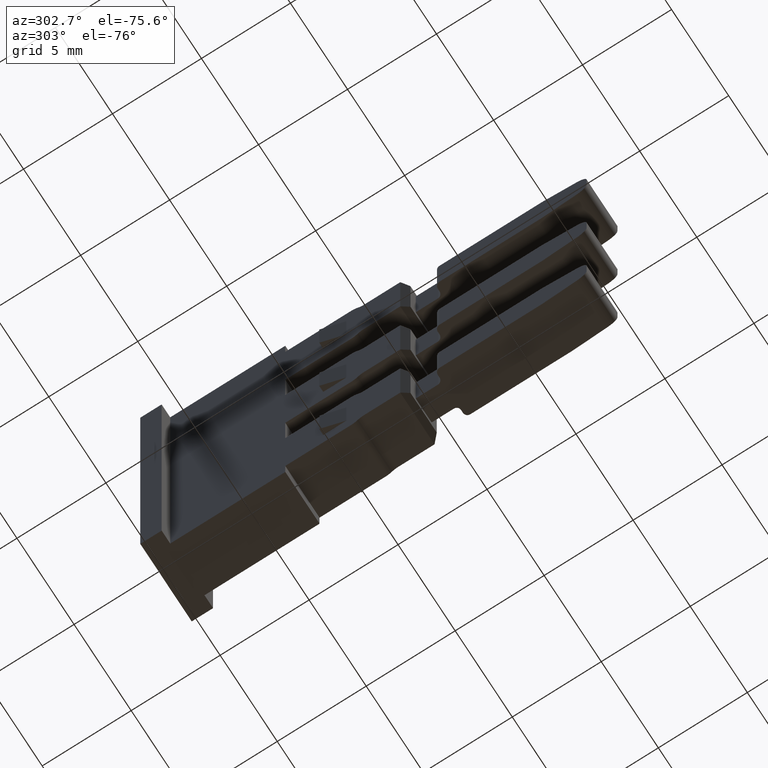
[diagram: clean part render]
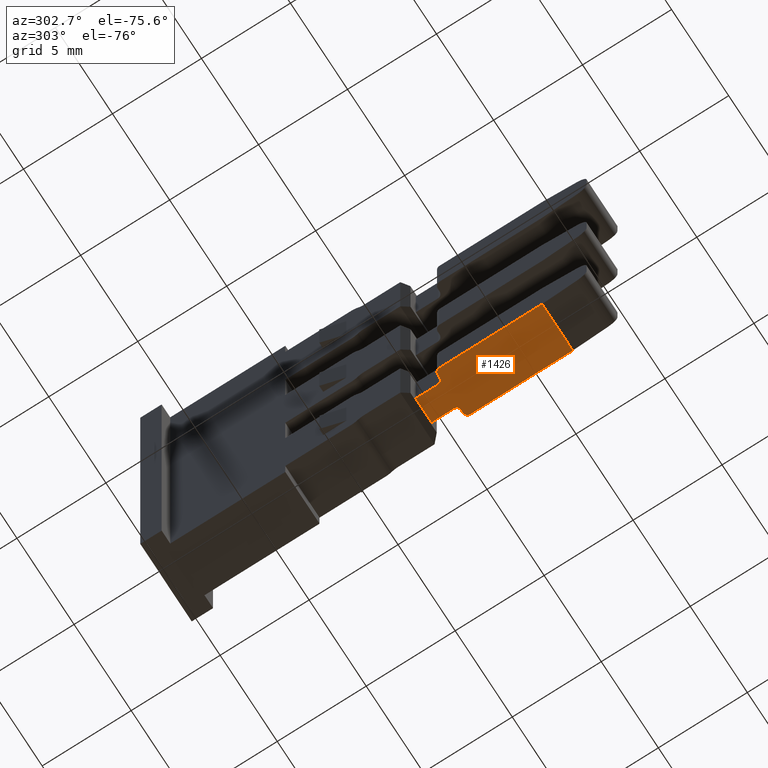
[diagram: same view with one face highlighted and labeled with its STEP entity id]
A machine part, auxiliary view. The second image highlights one B-rep face of the part: STEP entity #1426.
In plain terms, the highlighted planar face has unit normal (-0, 0, 1).
Its self-contained STEP definition (entity closure, byte-faithful):
#38 = LINE ( 'NONE', #68, #3055 ) ;
#57 = DIRECTION ( 'NONE',  ( -1.000000000000000000, -2.027333134354696000E-015, -1.149757754718231300E-014 ) ) ;
#68 = CARTESIAN_POINT ( 'NONE',  ( 100.4203046668918700, 238.3134866759714000, 151.3398226793859500 ) ) ;
#88 = DIRECTION ( 'NONE',  ( -7.193572994224770700E-015, 2.594839121907101700E-014, 1.000000000000000000 ) ) ;
#89 = PLANE ( 'NONE',  #3048 ) ;
#91 = CARTESIAN_POINT ( 'NONE',  ( 110.0552529172780100, 248.6101602476014400, 151.3398226793860000 ) ) ;
#93 = DIRECTION ( 'NONE',  ( 0.0000000000000000000, -1.000000000000000000, 2.594839121907101700E-014 ) ) ;
#95 = FACE_OUTER_BOUND ( 'NONE', #1897, .T. ) ;
#753 = CARTESIAN_POINT ( 'NONE',  ( 112.0980534371295500, 244.0815789080035900, 151.3398226793861200 ) ) ;
#754 = CARTESIAN_POINT ( 'NONE',  ( 109.4024523974270400, 238.3134866759714300, 151.3398226793860600 ) ) ;
#755 = CARTESIAN_POINT ( 'NONE',  ( 111.8480534371295500, 244.3315789080035100, 151.3398226793861200 ) ) ;
#758 = CARTESIAN_POINT ( 'NONE',  ( 111.4452529172783200, 245.8315789080019700, 151.3398226793864000 ) ) ;
#760 = CARTESIAN_POINT ( 'NONE',  ( 109.8052529172788500, 244.3315789080034500, 151.3398226793861200 ) ) ;
#763 = CARTESIAN_POINT ( 'NONE',  ( 110.0552529172788400, 245.8315789080019400, 151.3398226793860600 ) ) ;
#765 = CARTESIAN_POINT ( 'NONE',  ( 110.0552529172788600, 244.5815789080034500, 151.3398226793861200 ) ) ;
#767 = CARTESIAN_POINT ( 'NONE',  ( 111.6952529172784900, 244.3315789080035600, 151.3398226793871700 ) ) ;
#787 = CARTESIAN_POINT ( 'NONE',  ( 109.6524523974265600, 244.3315789080034500, 151.3398226793861200 ) ) ;
#789 = CARTESIAN_POINT ( 'NONE',  ( 111.4452529172784800, 244.5815789080035900, 151.3398226793871700 ) ) ;
#801 = CARTESIAN_POINT ( 'NONE',  ( 112.0980534371293500, 238.3134866759717700, 151.3398226793861200 ) ) ;
#819 = CARTESIAN_POINT ( 'NONE',  ( 109.4024523974265600, 244.0815789080034200, 151.3398226793861700 ) ) ;
#1077 = EDGE_CURVE ( 'NONE', #1620, #1583, #3821, .T. ) ;
#1085 = EDGE_CURVE ( 'NONE', #1613, #1620, #2654, .T. ) ;
#1099 = EDGE_CURVE ( 'NONE', #1583, #1625, #2690, .T. ) ;
#1100 = EDGE_CURVE ( 'NONE', #1596, #1634, #3851, .T. ) ;
#1106 = EDGE_CURVE ( 'NONE', #1615, #1636, #2657, .T. ) ;
#1107 = EDGE_CURVE ( 'NONE', #1634, #1605, #3929, .T. ) ;
#1110 = EDGE_CURVE ( 'NONE', #1618, #1636, #3905, .T. ) ;
#1126 = EDGE_CURVE ( 'NONE', #1625, #1596, #3959, .T. ) ;
#1149 = EDGE_CURVE ( 'NONE', #1631, #1615, #4019, .T. ) ;
#1152 = EDGE_CURVE ( 'NONE', #1613, #1603, #3999, .T. ) ;
#1172 = EDGE_CURVE ( 'NONE', #1605, #1631, #2737, .T. ) ;
#1424 = EDGE_CURVE ( 'NONE', #1603, #1618, #38, .T. ) ;
#1426 = ADVANCED_FACE ( 'NONE', ( #95 ), #89, .F. ) ;
#1583 = VERTEX_POINT ( 'NONE', #767 ) ;
#1596 = VERTEX_POINT ( 'NONE', #758 ) ;
#1603 = VERTEX_POINT ( 'NONE', #801 ) ;
#1605 = VERTEX_POINT ( 'NONE', #765 ) ;
#1613 = VERTEX_POINT ( 'NONE', #753 ) ;
#1615 = VERTEX_POINT ( 'NONE', #787 ) ;
#1618 = VERTEX_POINT ( 'NONE', #754 ) ;
#1620 = VERTEX_POINT ( 'NONE', #755 ) ;
#1625 = VERTEX_POINT ( 'NONE', #789 ) ;
#1631 = VERTEX_POINT ( 'NONE', #760 ) ;
#1634 = VERTEX_POINT ( 'NONE', #763 ) ;
#1636 = VERTEX_POINT ( 'NONE', #819 ) ;
#1897 = EDGE_LOOP ( 'NONE', ( #2498, #2485, #2508, #2487, #2540, #2578, #2562, #2541, #2577, #2589, #2528, #2557 ) ) ;
#2485 = ORIENTED_EDGE ( 'NONE', *, *, #1110, .T. ) ;
#2487 = ORIENTED_EDGE ( 'NONE', *, *, #1149, .F. ) ;
#2498 = ORIENTED_EDGE ( 'NONE', *, *, #1424, .T. ) ;
#2508 = ORIENTED_EDGE ( 'NONE', *, *, #1106, .F. ) ;
#2528 = ORIENTED_EDGE ( 'NONE', *, *, #1085, .F. ) ;
#2540 = ORIENTED_EDGE ( 'NONE', *, *, #1172, .F. ) ;
#2541 = ORIENTED_EDGE ( 'NONE', *, *, #1126, .F. ) ;
#2557 = ORIENTED_EDGE ( 'NONE', *, *, #1152, .T. ) ;
#2562 = ORIENTED_EDGE ( 'NONE', *, *, #1100, .F. ) ;
#2577 = ORIENTED_EDGE ( 'NONE', *, *, #1099, .F. ) ;
#2578 = ORIENTED_EDGE ( 'NONE', *, *, #1107, .F. ) ;
#2589 = ORIENTED_EDGE ( 'NONE', *, *, #1077, .F. ) ;
#2650 = VECTOR ( 'NONE', #3922, 1000.000000000000000 ) ;
#2651 = VECTOR ( 'NONE', #3908, 1000.000000000000000 ) ;
#2652 = AXIS2_PLACEMENT_3D ( 'NONE', #3875, #3857, #3869 ) ;
#2654 = CIRCLE ( 'NONE', #2668, 0.2500000000000002200 ) ;
#2657 = CIRCLE ( 'NONE', #2692, 0.2500000000000002200 ) ;
#2668 = AXIS2_PLACEMENT_3D ( 'NONE', #3817, #3819, #3830 ) ;
#2690 = CIRCLE ( 'NONE', #2652, 0.2500000000000002200 ) ;
#2692 = AXIS2_PLACEMENT_3D ( 'NONE', #3911, #3910, #3924 ) ;
#2698 = VECTOR ( 'NONE', #3823, 1000.000000000000000 ) ;
#2699 = VECTOR ( 'NONE', #3849, 1000.000000000000000 ) ;
#2708 = VECTOR ( 'NONE', #3950, 1000.000000000000000 ) ;
#2737 = CIRCLE ( 'NONE', #2738, 0.2500000000000002200 ) ;
#2738 = AXIS2_PLACEMENT_3D ( 'NONE', #4072, #4081, #4090 ) ;
#2740 = VECTOR ( 'NONE', #4054, 1000.000000000000000 ) ;
#2755 = VECTOR ( 'NONE', #4055, 1000.000000000000000 ) ;
#3048 = AXIS2_PLACEMENT_3D ( 'NONE', #91, #88, #93 ) ;
#3055 = VECTOR ( 'NONE', #57, 1000.000000000000000 ) ;
#3817 = CARTESIAN_POINT ( 'NONE',  ( 111.8480534371295500, 244.0815789080035900, 151.3398226793861200 ) ) ;
#3819 = DIRECTION ( 'NONE',  ( -7.193572994222961100E-015, 5.441398086523228100E-029, 1.000000000000000000 ) ) ;
#3821 = LINE ( 'NONE', #3843, #2698 ) ;
#3823 = DIRECTION ( 'NONE',  ( -1.000000000000000000, -1.866616463170884400E-028, -7.193572994224770700E-015 ) ) ;
#3830 = DIRECTION ( 'NONE',  ( 1.000000000000000000, 0.0000000000000000000, 0.0000000000000000000 ) ) ;
#3843 = CARTESIAN_POINT ( 'NONE',  ( 110.0552529172780100, 244.3315789080035400, 151.3398226793861200 ) ) ;
#3849 = DIRECTION ( 'NONE',  ( -1.000000000000000000, -1.866616463170884400E-028, -7.193572994224770700E-015 ) ) ;
#3851 = LINE ( 'NONE', #3866, #2699 ) ;
#3857 = DIRECTION ( 'NONE',  ( 7.193572994224081300E-015, -5.441398086520266300E-029, -1.000000000000000000 ) ) ;
#3866 = CARTESIAN_POINT ( 'NONE',  ( 110.0552529172780100, 245.8315789080019700, 151.3398226793860600 ) ) ;
#3869 = DIRECTION ( 'NONE',  ( -1.000000000000000000, 0.0000000000000000000, 0.0000000000000000000 ) ) ;
#3875 = CARTESIAN_POINT ( 'NONE',  ( 111.6952529172784900, 244.5815789080035900, 151.3398226793882800 ) ) ;
#3905 = LINE ( 'NONE', #3938, #2651 ) ;
#3908 = DIRECTION ( 'NONE',  ( -8.429940185974501000E-014, 1.000000000000000000, 0.0000000000000000000 ) ) ;
#3910 = DIRECTION ( 'NONE',  ( -7.193572994225531200E-015, 5.441398086516434600E-029, 1.000000000000000000 ) ) ;
#3911 = CARTESIAN_POINT ( 'NONE',  ( 109.6524523974265600, 244.0815789080034500, 151.3398226793861200 ) ) ;
#3922 = DIRECTION ( 'NONE',  ( 0.0000000000000000000, -1.000000000000000000, 2.594839121907101700E-014 ) ) ;
#3924 = DIRECTION ( 'NONE',  ( 1.000000000000000000, 0.0000000000000000000, 0.0000000000000000000 ) ) ;
#3929 = LINE ( 'NONE', #3935, #2650 ) ;
#3935 = CARTESIAN_POINT ( 'NONE',  ( 110.0552529172788400, 248.6101602476014400, 151.3398226793860000 ) ) ;
#3938 = CARTESIAN_POINT ( 'NONE',  ( 109.4024523974265000, 244.7827890380865200, 151.3398226793861700 ) ) ;
#3950 = DIRECTION ( 'NONE',  ( -0.0000000000000000000, 1.000000000000000000, -2.594839121907101700E-014 ) ) ;
#3959 = LINE ( 'NONE', #3974, #2708 ) ;
#3974 = CARTESIAN_POINT ( 'NONE',  ( 111.4452529172784400, 248.6101602476014400, 151.3398226793860000 ) ) ;
#3999 = LINE ( 'NONE', #4042, #2740 ) ;
#4019 = LINE ( 'NONE', #4031, #2755 ) ;
#4031 = CARTESIAN_POINT ( 'NONE',  ( 110.0552529172780100, 244.3315789080034500, 151.3398226793861200 ) ) ;
#4042 = CARTESIAN_POINT ( 'NONE',  ( 112.0980534371295600, 244.7827890380865200, 151.3398226793861200 ) ) ;
#4054 = DIRECTION ( 'NONE',  ( -3.142629004551421700E-014, -1.000000000000000000, 0.0000000000000000000 ) ) ;
#4055 = DIRECTION ( 'NONE',  ( -1.000000000000000000, -1.866616463170884400E-028, -7.193572994224770700E-015 ) ) ;
#4072 = CARTESIAN_POINT ( 'NONE',  ( 109.8052529172788500, 244.5815789080034500, 151.3398226793861200 ) ) ;
#4081 = DIRECTION ( 'NONE',  ( 7.193572994224081300E-015, -5.441398086520266300E-029, -1.000000000000000000 ) ) ;
#4090 = DIRECTION ( 'NONE',  ( 1.000000000000000000, 0.0000000000000000000, 0.0000000000000000000 ) ) ;